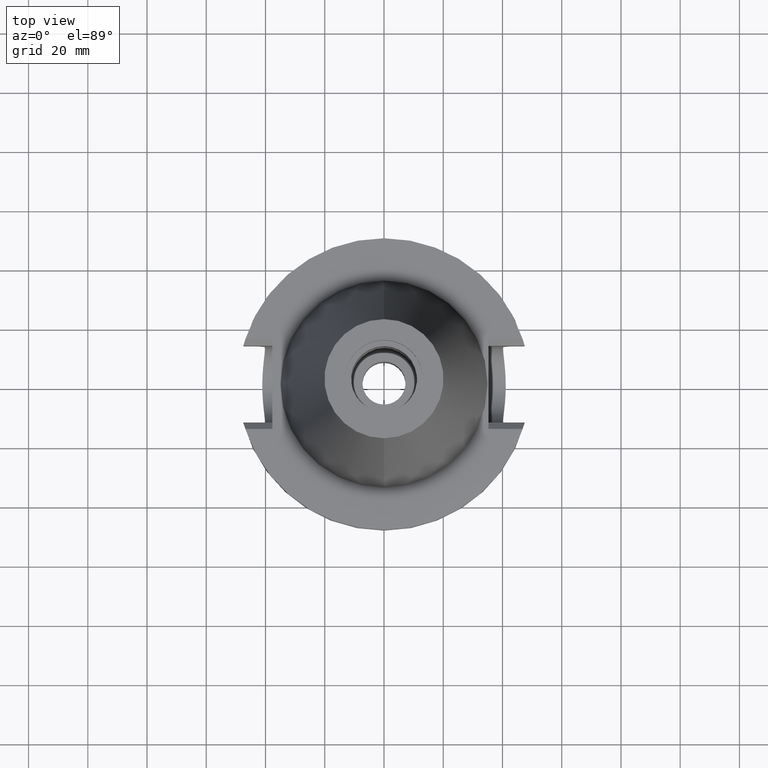
[diagram: clean part render]
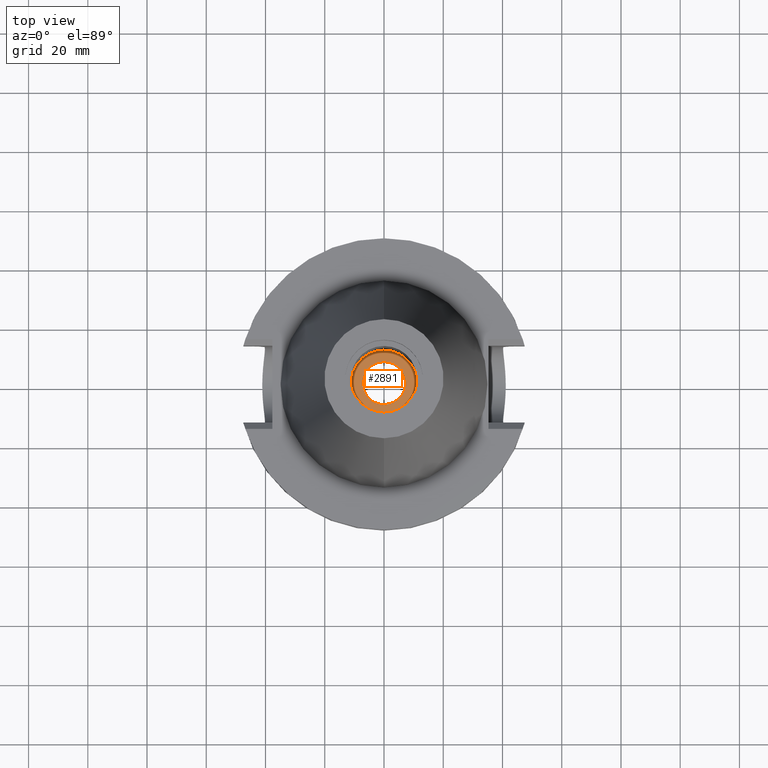
[diagram: same view with one face highlighted and labeled with its STEP entity id]
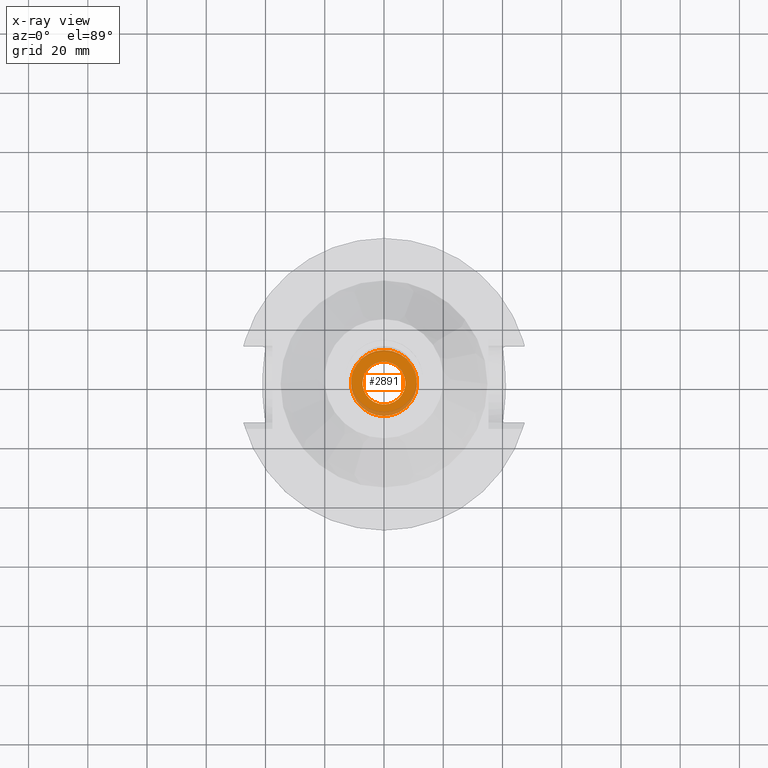
[diagram: x-ray of the same camera — body ghosted, the highlighted face saturated]
A machine part, top view. The second image highlights one B-rep face of the part: STEP entity #2891.
The next image is the same camera in x-ray: the body ghosted, the highlighted face saturated — about 14% of this face is hidden behind the body in this view.
In plain terms, the highlighted planar face has unit normal (0, 0, -1).
Its self-contained STEP definition (entity closure, byte-faithful):
#1449=CARTESIAN_POINT('',(0.E0,2.594781638033E-14,1.66E1));
#1450=DIRECTION('',(0.E0,0.E0,-1.E0));
#1451=DIRECTION('',(0.E0,-1.E0,0.E0));
#1452=AXIS2_PLACEMENT_3D('',#1449,#1450,#1451);
#1457=CARTESIAN_POINT('',(0.E0,2.594781638033E-14,1.66E1));
#1458=DIRECTION('',(0.E0,0.E0,-1.E0));
#1459=DIRECTION('',(0.E0,1.E0,0.E0));
#1460=AXIS2_PLACEMENT_3D('',#1457,#1458,#1459);
#1465=CARTESIAN_POINT('',(0.E0,2.594781638033E-14,1.66E1));
#1466=DIRECTION('',(0.E0,0.E0,1.E0));
#1467=DIRECTION('',(0.E0,-1.E0,0.E0));
#1468=AXIS2_PLACEMENT_3D('',#1465,#1466,#1467);
#1473=CARTESIAN_POINT('',(0.E0,2.594781638033E-14,1.66E1));
#1474=DIRECTION('',(0.E0,0.E0,1.E0));
#1475=DIRECTION('',(0.E0,1.E0,0.E0));
#1476=AXIS2_PLACEMENT_3D('',#1473,#1474,#1475);
#1557=CARTESIAN_POINT('',(0.E0,1.115E1,1.66E1));
#1558=VERTEX_POINT('',#1557);
#1559=CARTESIAN_POINT('',(0.E0,-1.115E1,1.66E1));
#1560=VERTEX_POINT('',#1559);
#1561=CARTESIAN_POINT('',(0.E0,-7.25E0,1.66E1));
#1562=CARTESIAN_POINT('',(0.E0,7.25E0,1.66E1));
#1563=VERTEX_POINT('',#1561);
#1564=VERTEX_POINT('',#1562);
#2876=CARTESIAN_POINT('',(0.E0,1.427938167806E-14,1.66E1));
#2877=DIRECTION('',(0.E0,0.E0,-1.E0));
#2878=DIRECTION('',(0.E0,-1.E0,0.E0));
#2879=AXIS2_PLACEMENT_3D('',#2876,#2877,#2878);
#2880=PLANE('',#2879);
#2882=ORIENTED_EDGE('',*,*,#2881,.T.);
#2884=ORIENTED_EDGE('',*,*,#2883,.T.);
#2885=EDGE_LOOP('',(#2882,#2884));
#2886=FACE_OUTER_BOUND('',#2885,.F.);
#2887=ORIENTED_EDGE('',*,*,#2855,.T.);
#2888=ORIENTED_EDGE('',*,*,#2871,.T.);
#2889=EDGE_LOOP('',(#2887,#2888));
#2890=FACE_BOUND('',#2889,.F.);
#1453=CIRCLE('',#1452,1.115E1);
#1461=CIRCLE('',#1460,1.115E1);
#1469=CIRCLE('',#1468,7.25E0);
#1477=CIRCLE('',#1476,7.25E0);
#2855=EDGE_CURVE('',#1563,#1564,#1469,.T.);
#2871=EDGE_CURVE('',#1564,#1563,#1477,.T.);
#2881=EDGE_CURVE('',#1560,#1558,#1453,.T.);
#2883=EDGE_CURVE('',#1558,#1560,#1461,.T.);
#2891=ADVANCED_FACE('',(#2886,#2890),#2880,.F.);